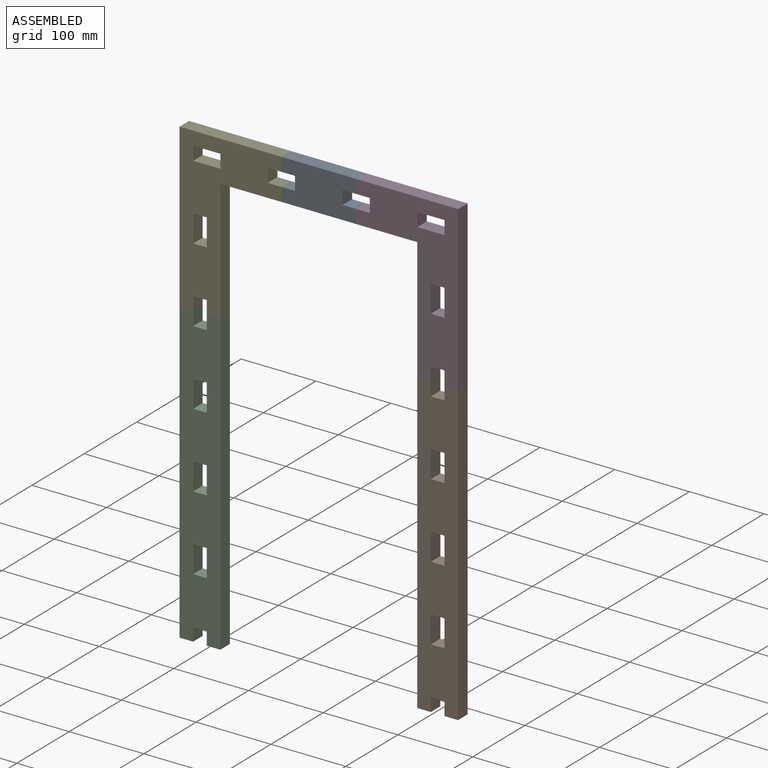
[diagram: assembled view]
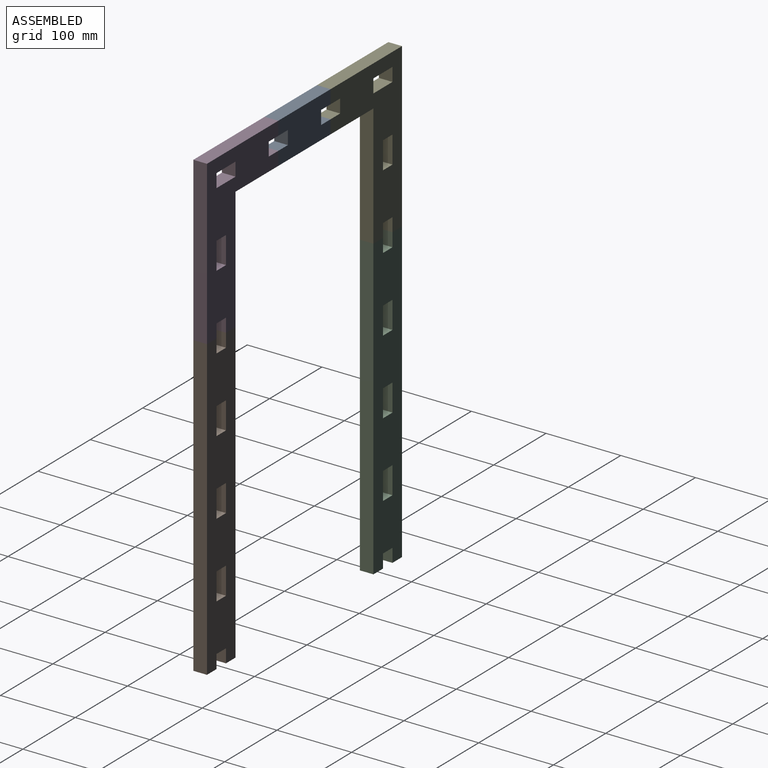
[diagram: assembled view, second angle]
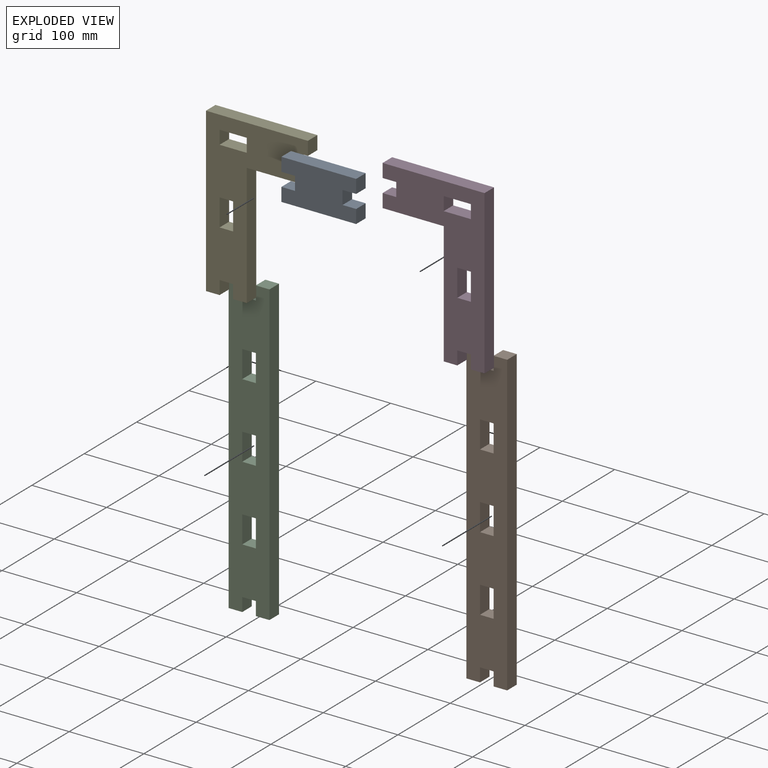
[diagram: exploded view]
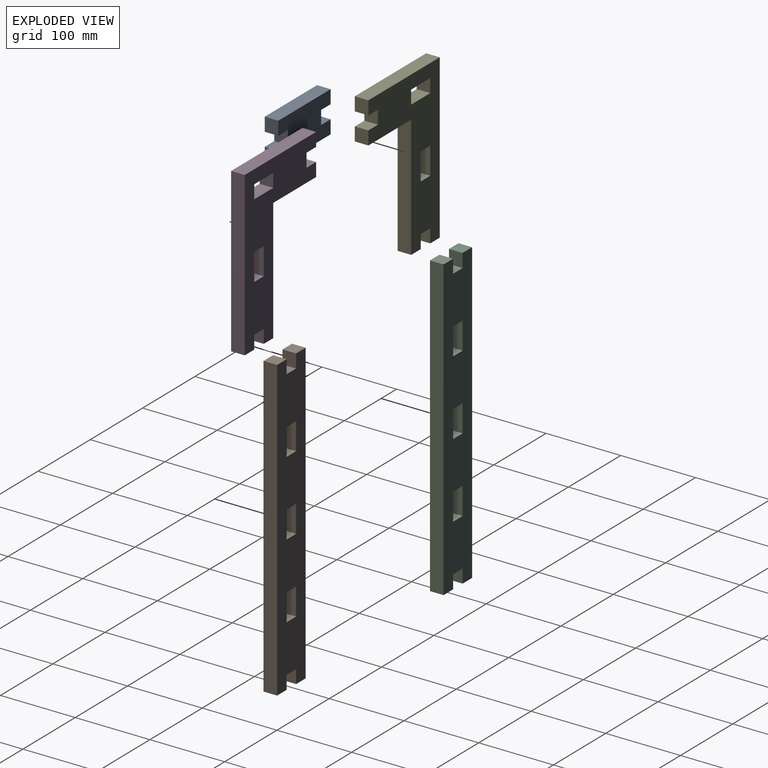
[diagram: exploded view, second angle]
ASSEMBLY  parts=5 mates=4
PART A: 14 faces, bbox 54.6x18.2x100 mm
  f0: plane 18.2x18.2mm, normal (0,0,-1), area 331.2mm2, adj f2,f5,f7,f11
  f1: plane 18.2x18.2mm, normal (0,0,1), area 331.2mm2, adj f2,f3,f7,f9
  f2: plane 100x54.6mm, normal (0,-1,0), area 4797.5mm2, adj f0,f1,f3,f4,f5,f6,f8,f9
  f3: plane 100x18.2mm, normal (-1,0,0), area 1820mm2, adj f1,f2,f4,f7
  f4: plane 18.2x18.2mm, normal (0,0,-1), area 331.2mm2, adj f2,f3,f7,f12
  f5: plane 100x18.2mm, normal (1,0,0), area 1820mm2, adj f0,f2,f6,f7
  f6: plane 18.2x18.2mm, normal (0,0,1), area 331.2mm2, adj f2,f5,f7,f8
  f7: plane 100x54.6mm, normal (0,1,0), area 4797.5mm2, adj f0,f1,f3,f4,f5,f6,f8,f9
  f8: plane 18.2x18.2mm, normal (-1,0,0), area 331.2mm2, adj f2,f6,f7,f10
  f9: plane 18.2x18.2mm, normal (1,0,0), area 331.2mm2, adj f1,f2,f7,f10
  f10: plane 18.2x18.2mm, normal (0,0,1), area 331.2mm2, adj f2,f7,f8,f9
  f11: plane 18.2x18.2mm, normal (-1,0,0), area 331.2mm2, adj f0,f2,f7,f13
  f12: plane 18.2x18.2mm, normal (1,0,0), area 331.2mm2, adj f2,f4,f7,f13
  f13: plane 18.2x18.2mm, normal (0,0,-1), area 331.2mm2, adj f2,f7,f11,f12
PART B: 26 faces, bbox 54.6x18.2x400 mm
  f0: plane 18.2x18.2mm, normal (0,0,-1), area 331.2mm2, adj f2,f3,f6,f23
  f1: plane 18.2x18.2mm, normal (0,0,1), area 331.2mm2, adj f2,f3,f4,f13
  f2: plane 400x54.6mm, normal (0,-1,0), area 19190.1mm2, adj f0,f1,f4,f5,f6,f7,f8,f9
  f3: plane 400x54.6mm, normal (0,1,0), area 19190.1mm2, adj f0,f1,f4,f5,f6,f7,f8,f9
  f4: plane 400x18.2mm, normal (-1,0,0), area 7280mm2, adj f1,f2,f3,f5
  f5: plane 18.2x18.2mm, normal (0,0,-1), area 331.2mm2, adj f2,f3,f4,f24
  f6: plane 400x18.2mm, normal (1,0,0), area 7280mm2, adj f0,f2,f3,f7
  f7: plane 18.2x18.2mm, normal (0,0,1), area 331.2mm2, adj f2,f3,f6,f14
  f8: plane 18.2x18.2mm, normal (0,0,-1), area 331.2mm2, adj f2,f3,f10,f11
  f9: plane 18.2x18.2mm, normal (0,0,1), area 331.2mm2, adj f2,f3,f10,f11
  f10: plane 36.4x18.2mm, normal (1,0,0), area 662.5mm2, adj f2,f3,f8,f9
  f11: plane 36.4x18.2mm, normal (-1,0,0), area 662.5mm2, adj f2,f3,f8,f9
  f12: plane 18.2x18.2mm, normal (0,0,1), area 331.2mm2, adj f2,f3,f13,f14
  f13: plane 18.2x18.2mm, normal (1,0,0), area 331.2mm2, adj f1,f2,f3,f12
  f14: plane 18.2x18.2mm, normal (-1,0,0), area 331.2mm2, adj f2,f3,f7,f12
  f15: plane 18.2x18.2mm, normal (0,0,-1), area 331.2mm2, adj f2,f3,f17,f18
  f16: plane 18.2x18.2mm, normal (0,0,1), area 331.2mm2, adj f2,f3,f17,f18
  f17: plane 36.4x18.2mm, normal (1,0,0), area 662.5mm2, adj f2,f3,f15,f16
  f18: plane 36.4x18.2mm, normal (-1,0,0), area 662.5mm2, adj f2,f3,f15,f16
  f19: plane 18.2x18.2mm, normal (0,0,-1), area 331.2mm2, adj f2,f3,f20,f21
  f20: plane 36.4x18.2mm, normal (1,0,0), area 662.5mm2, adj f2,f3,f19,f22
  f21: plane 36.4x18.2mm, normal (-1,0,0), area 662.5mm2, adj f2,f3,f19,f22
  f22: plane 18.2x18.2mm, normal (0,0,1), area 331.2mm2, adj f2,f3,f20,f21
  f23: plane 18.2x18.2mm, normal (-1,0,0), area 331.2mm2, adj f0,f2,f3,f25
  f24: plane 18.2x18.2mm, normal (1,0,0), area 331.2mm2, adj f2,f3,f5,f25
  f25: plane 18.2x18.2mm, normal (0,0,-1), area 331.2mm2, adj f2,f3,f23,f24
PART C: same geometry as B
PART D: 24 faces, bbox 136.4x18.2x218.2 mm
  f0: plane 18.2x18.2mm, normal (0,0,-1), area 331.2mm2, adj f2,f3,f9,f22
  f1: plane 18.2x18.2mm, normal (1,0,0), area 331.2mm2, adj f2,f4,f9,f16
  f2: plane 218.2x136.4mm, normal (0,1,0), area 14392.6mm2, adj f0,f1,f3,f4,f5,f6,f7,f8
  f3: plane 218.2x18.2mm, normal (-1,0,0), area 3971.2mm2, adj f0,f2,f4,f9
  f4: plane 136.4x18.2mm, normal (0,0,1), area 2482.5mm2, adj f1,f2,f3,f9
  f5: plane 18.2x18.2mm, normal (1,0,0), area 331.2mm2, adj f2,f6,f9,f15
  f6: plane 81.8x18.2mm, normal (0,0,-1), area 1488.8mm2, adj f2,f5,f7,f9
  f7: plane 163.6x18.2mm, normal (1,0,0), area 2977.5mm2, adj f2,f6,f8,f9
  f8: plane 18.2x18.2mm, normal (0,0,-1), area 331.2mm2, adj f2,f7,f9,f21
  f9: plane 218.2x136.4mm, normal (0,-1,0), area 14392.6mm2, adj f0,f1,f3,f4,f5,f6,f7,f8
  f10: plane 18.2x18.2mm, normal (1,0,0), area 331.2mm2, adj f2,f9,f12,f13
  f11: plane 18.2x18.2mm, normal (-1,0,0), area 331.2mm2, adj f2,f9,f12,f13
  f12: plane 36.4x18.2mm, normal (0,0,1), area 662.5mm2, adj f2,f9,f10,f11
  f13: plane 36.4x18.2mm, normal (0,0,-1), area 662.5mm2, adj f2,f9,f10,f11
  f14: plane 18.2x18.2mm, normal (1,0,0), area 331.2mm2, adj f2,f9,f15,f16
  f15: plane 18.2x18.2mm, normal (0,0,1), area 331.2mm2, adj f2,f5,f9,f14
  f16: plane 18.2x18.2mm, normal (0,0,-1), area 331.2mm2, adj f1,f2,f9,f14
  f17: plane 18.2x18.2mm, normal (0,0,1), area 331.2mm2, adj f2,f9,f18,f19
  f18: plane 36.4x18.2mm, normal (1,0,0), area 662.5mm2, adj f2,f9,f17,f20
  f19: plane 36.4x18.2mm, normal (-1,0,0), area 662.5mm2, adj f2,f9,f17,f20
  f20: plane 18.2x18.2mm, normal (0,0,-1), area 331.2mm2, adj f2,f9,f18,f19
  f21: plane 18.2x18.2mm, normal (-1,0,0), area 331.2mm2, adj f2,f8,f9,f23
  f22: plane 18.2x18.2mm, normal (1,0,0), area 331.2mm2, adj f0,f2,f9,f23
  f23: plane 18.2x18.2mm, normal (0,0,-1), area 331.2mm2, adj f2,f9,f21,f22
PART E: same geometry as D
PLACE A rot(axis=(0,-1,0),90deg) t=(209.1,0,590.9)mm
PLACE B t=(318.2,0,0)mm
PLACE C at identity fixed
PLACE D rot(axis=(0,0,-1),180deg) t=(318.2,-300,636.4)mm
PLACE E t=(0,18.2,636.4)mm
MATE fastened E.f9 <-> C.f2  axis (0,-1,0) through (-18.2,-150,400)mm
MATE fastened E.f9 <-> A.f2  axis (0,-1,0) through (109.1,-150,609.1)mm
MATE fastened D.f2 <-> A.f2  axis (0,-1,0) through (209.1,-150,609.1)mm
MATE fastened B.f2 <-> D.f2  axis (0,-1,0) through (300,-150,400)mm
